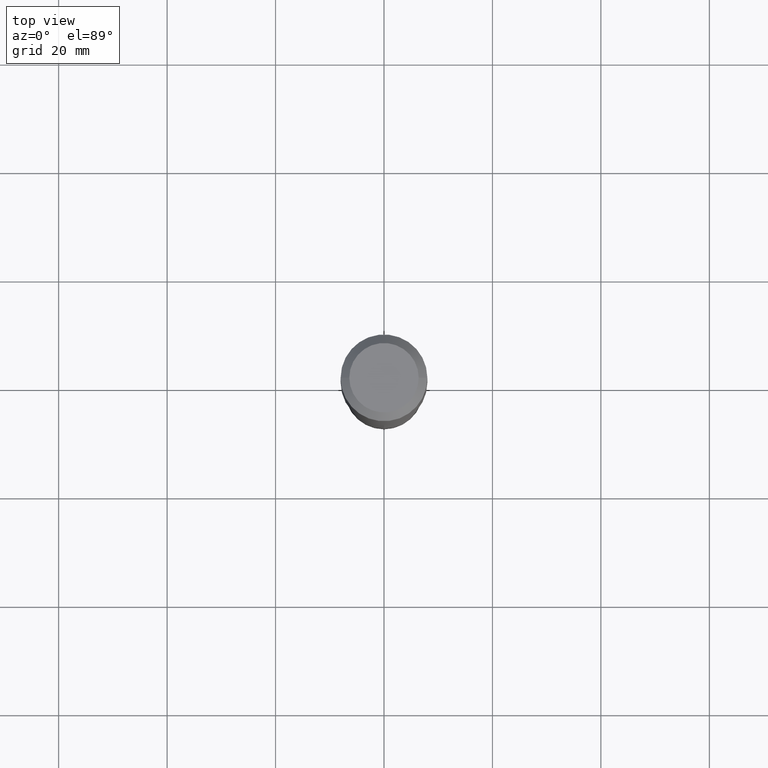
[diagram: clean part render]
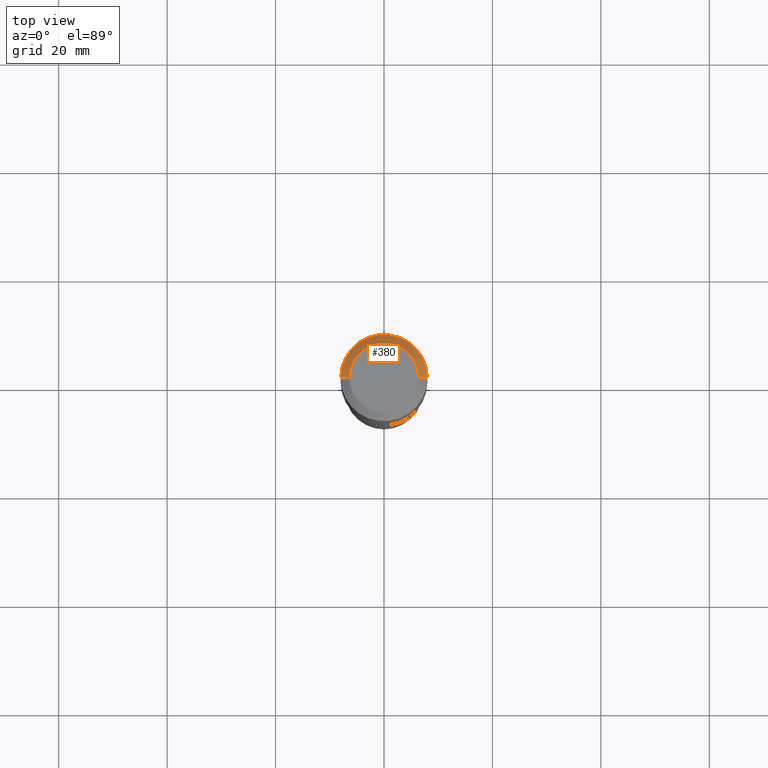
[diagram: same view with one face highlighted and labeled with its STEP entity id]
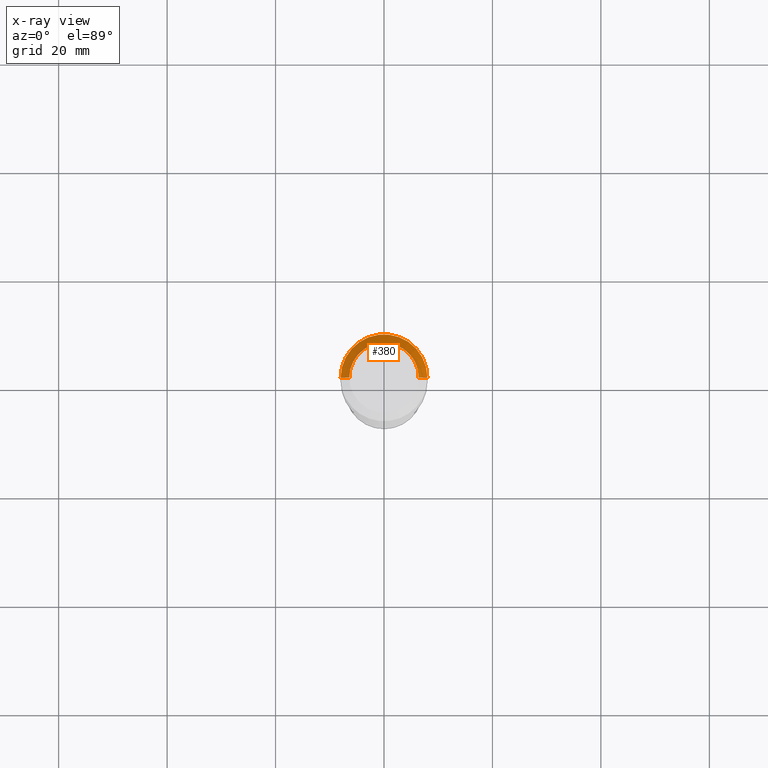
[diagram: x-ray of the same camera — body ghosted, the highlighted face saturated]
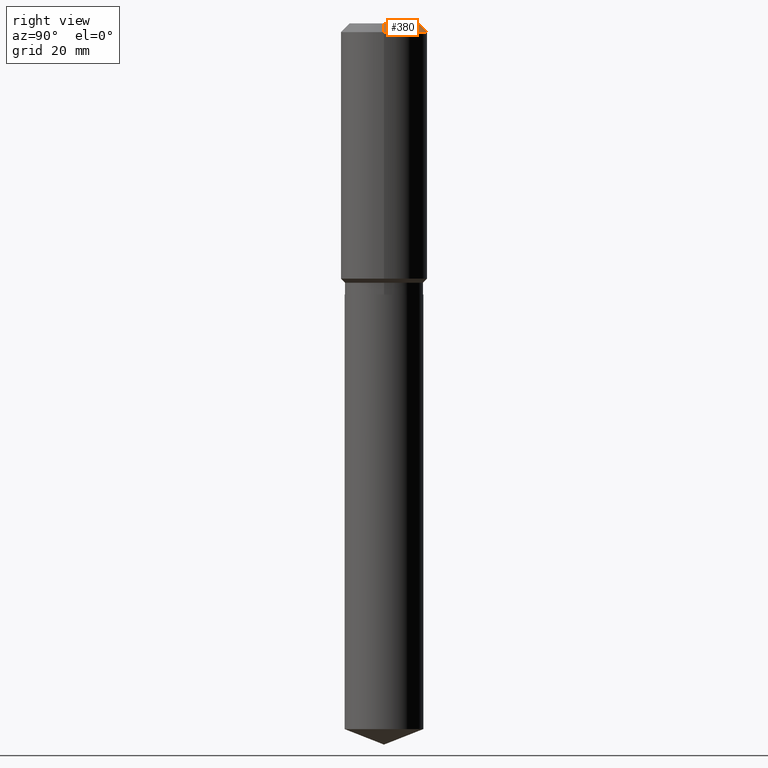
[diagram: same view with one face highlighted and labeled with its STEP entity id]
A machine part, top view. The second image highlights one B-rep face of the part: STEP entity #380.
The next image is the same camera in x-ray: the body ghosted, the highlighted face saturated — about 0% of this face is hidden behind the body in this view.
A second angle (right view) of the same face is appended — the face is thin or edge-on in the first view.
In plain terms, the highlighted conical surface has half-angle 45 deg.
Its self-contained STEP definition (entity closure, byte-faithful):
#2 = ORIENTED_EDGE ( 'NONE', *, *, #478, .T. ) ;
#12 = ORIENTED_EDGE ( 'NONE', *, *, #485, .T. ) ;
#29 = DIRECTION ( 'NONE',  ( 2.445468806185136597E-29, -3.491481338843145583E-15, -1.000000000000000000 ) ) ;
#51 = LINE ( 'NONE', #402, #360 ) ;
#65 = DIRECTION ( 'NONE',  ( -2.445468806185136597E-29, 3.491481338843145583E-15, 1.000000000000000000 ) ) ;
#73 = LINE ( 'NONE', #117, #216 ) ;
#76 = DIRECTION ( 'NONE',  ( -0.7071067811865453523, 2.468850131082234184E-15, -0.7071067811865496822 ) ) ;
#105 = DIRECTION ( 'NONE',  ( 1.000000000000000000, -6.982962677686266711E-15, 4.876115136096691995E-29 ) ) ;
#111 = DIRECTION ( 'NONE',  ( -2.445468806185136597E-29, 3.491481338843145583E-15, 1.000000000000000000 ) ) ;
#117 = CARTESIAN_POINT ( 'NONE',  ( -0.3149500000000000077, 1.979355685803558833E-15, -0.06299000000000037902 ) ) ;
#151 = EDGE_CURVE ( 'NONE', #351, #458, #469, .T. ) ;
#167 = CIRCLE ( 'NONE', #350, 0.3149500000000000077 ) ;
#179 = CARTESIAN_POINT ( 'NONE',  ( 0.3149500000000000077, -2.419212504871020909E-15, -0.06299000000000037902 ) ) ;
#199 = CONICAL_SURFACE ( 'NONE', #297, 0.3149500000000000077, 0.7853981633974452814 ) ;
#216 = VECTOR ( 'NONE', #76, 39.37007874015748143 ) ;
#228 = ORIENTED_EDGE ( 'NONE', *, *, #354, .F. ) ;
#258 = CARTESIAN_POINT ( 'NONE',  ( -0.3149500000000000077, -1.106792744861659912E-15, -0.06299000000000037902 ) ) ;
#291 = CARTESIAN_POINT ( 'NONE',  ( 1.540400801016026505E-30, -2.199284095337310628E-16, -0.06299000000000037902 ) ) ;
#297 = AXIS2_PLACEMENT_3D ( 'NONE', #291, #29, #317 ) ;
#310 = CARTESIAN_POINT ( 'NONE',  ( 1.540400801016026505E-30, -2.199284095337310628E-16, -0.06299000000000037902 ) ) ;
#317 = DIRECTION ( 'NONE',  ( -1.000000000000000000, 6.982962677686266711E-15, 0.000000000000000000 ) ) ;
#319 = AXIS2_PLACEMENT_3D ( 'NONE', #484, #111, #105 ) ;
#321 = DIRECTION ( 'NONE',  ( 1.000000000000000000, -6.982962677686266711E-15, 0.000000000000000000 ) ) ;
#350 = AXIS2_PLACEMENT_3D ( 'NONE', #310, #65, #321 ) ;
#351 = VERTEX_POINT ( 'NONE', #372 ) ;
#354 = EDGE_CURVE ( 'NONE', #458, #377, #73, .T. ) ;
#360 = VECTOR ( 'NONE', #429, 39.37007874015748143 ) ;
#372 = CARTESIAN_POINT ( 'NONE',  ( 0.2519600000000000173, -2.054606664725195058E-15, 3.855188123729206640E-18 ) ) ;
#377 = VERTEX_POINT ( 'NONE', #258 ) ;
#380 = ADVANCED_FACE ( 'NONE', ( #412 ), #199, .T. ) ;
#402 = CARTESIAN_POINT ( 'NONE',  ( 0.3149500000000000077, -2.380642253931875190E-15, -0.06299000000000037902 ) ) ;
#412 = FACE_OUTER_BOUND ( 'NONE', #455, .T. ) ;
#413 = VERTEX_POINT ( 'NONE', #179 ) ;
#429 = DIRECTION ( 'NONE',  ( 0.7071067811865453523, -7.319954787623248157E-15, -0.7071067811865496822 ) ) ;
#453 = ORIENTED_EDGE ( 'NONE', *, *, #151, .F. ) ;
#455 = EDGE_LOOP ( 'NONE', ( #453, #12, #2, #228 ) ) ;
#458 = VERTEX_POINT ( 'NONE', #476 ) ;
#469 = CIRCLE ( 'NONE', #319, 0.2519600000000000173 ) ;
#476 = CARTESIAN_POINT ( 'NONE',  ( -0.2519600000000000173, 1.869391481036695286E-15, 3.855188123703182704E-18 ) ) ;
#478 = EDGE_CURVE ( 'NONE', #413, #377, #167, .T. ) ;
#484 = CARTESIAN_POINT ( 'NONE',  ( -9.427742298522569579E-47, 1.346031739168368629E-32, 3.855188123715871501E-18 ) ) ;
#485 = EDGE_CURVE ( 'NONE', #351, #413, #51, .T. ) ;